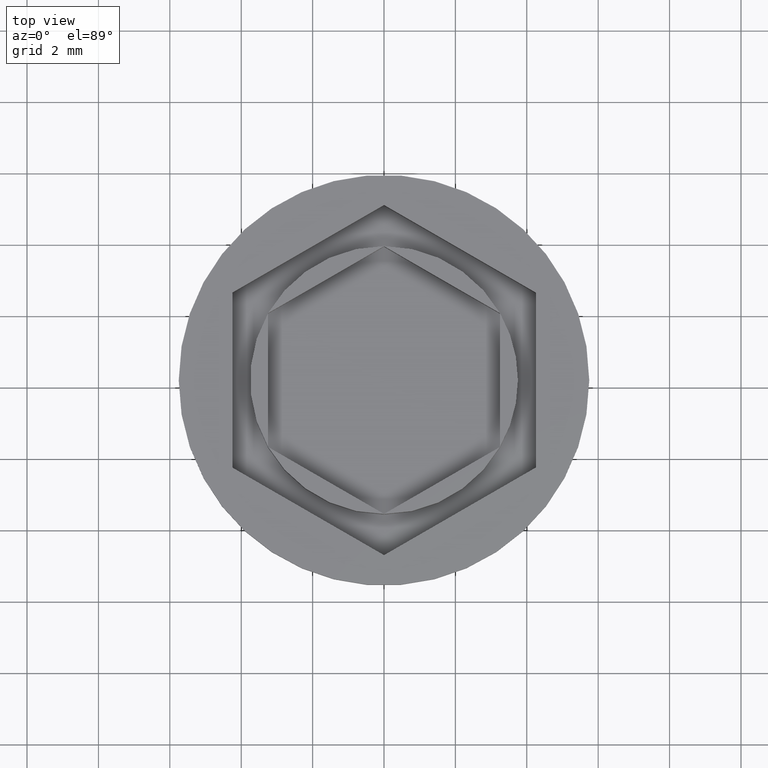
[diagram: clean part render]
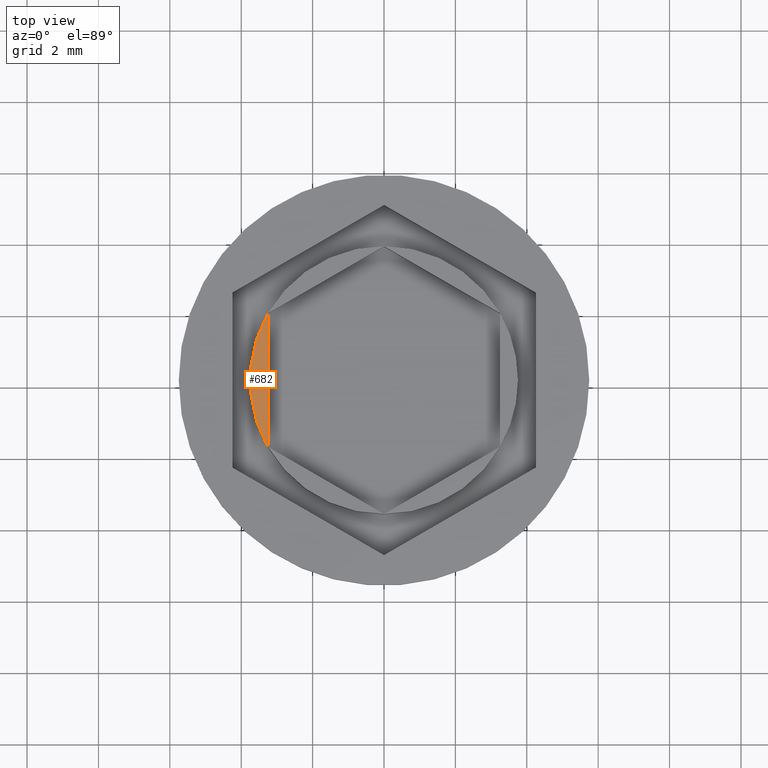
[diagram: same view with one face highlighted and labeled with its STEP entity id]
A machine part, top view. The second image highlights one B-rep face of the part: STEP entity #682.
In plain terms, the highlighted planar face has unit normal (0, -0, 1).
Its self-contained STEP definition (entity closure, byte-faithful):
#58 = CARTESIAN_POINT ( 'NONE',  ( -3.250000000000000444, -1.870828693386971109, 0.000000000000000000 ) ) ;
#172 = VECTOR ( 'NONE', #239, 1000.000000000000000 ) ;
#239 = DIRECTION ( 'NONE',  ( 0.000000000000000000, -1.000000000000000000, 0.000000000000000000 ) ) ;
#284 = DIRECTION ( 'NONE',  ( -0.000000000000000000, 0.000000000000000000, 1.000000000000000000 ) ) ;
#313 = FACE_OUTER_BOUND ( 'NONE', #1121, .T. ) ;
#357 = VERTEX_POINT ( 'NONE', #58 ) ;
#386 = ORIENTED_EDGE ( 'NONE', *, *, #1896, .T. ) ;
#461 = ORIENTED_EDGE ( 'NONE', *, *, #1960, .F. ) ;
#556 = AXIS2_PLACEMENT_3D ( 'NONE', #1550, #1224, #909 ) ;
#614 = PLANE ( 'NONE',  #556 ) ;
#629 = VERTEX_POINT ( 'NONE', #1673 ) ;
#682 = ADVANCED_FACE ( 'NONE', ( #313 ), #614, .T. ) ;
#857 = CARTESIAN_POINT ( 'NONE',  ( -3.250000000000000444, 0.000000000000000000, 0.000000000000000000 ) ) ;
#865 = DIRECTION ( 'NONE',  ( 1.000000000000000000, 0.000000000000000000, 0.000000000000000000 ) ) ;
#909 = DIRECTION ( 'NONE',  ( 1.000000000000000000, 0.000000000000000000, 0.000000000000000000 ) ) ;
#1015 = CARTESIAN_POINT ( 'NONE',  ( 0.000000000000000000, 0.000000000000000000, 0.000000000000000000 ) ) ;
#1121 = EDGE_LOOP ( 'NONE', ( #461, #386 ) ) ;
#1224 = DIRECTION ( 'NONE',  ( 0.000000000000000000, -0.000000000000000000, 1.000000000000000000 ) ) ;
#1331 = CIRCLE ( 'NONE', #1497, 3.750000000000000444 ) ;
#1497 = AXIS2_PLACEMENT_3D ( 'NONE', #1015, #284, #865 ) ;
#1550 = CARTESIAN_POINT ( 'NONE',  ( 0.000000000000000000, 0.000000000000000000, 0.000000000000000000 ) ) ;
#1673 = CARTESIAN_POINT ( 'NONE',  ( -3.250000000000000444, 1.870828693386970887, 0.000000000000000000 ) ) ;
#1896 = EDGE_CURVE ( 'NONE', #629, #357, #1331, .T. ) ;
#1927 = LINE ( 'NONE', #857, #172 ) ;
#1960 = EDGE_CURVE ( 'NONE', #629, #357, #1927, .T. ) ;